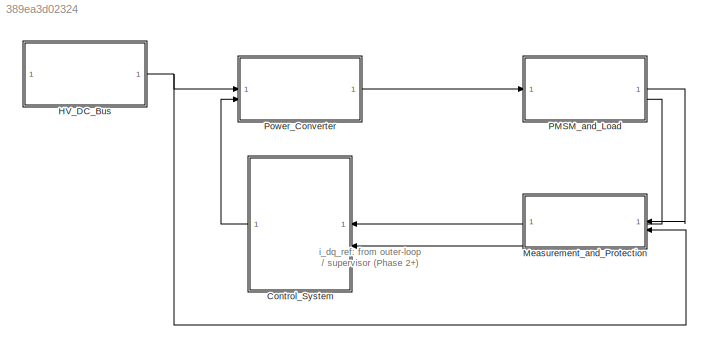
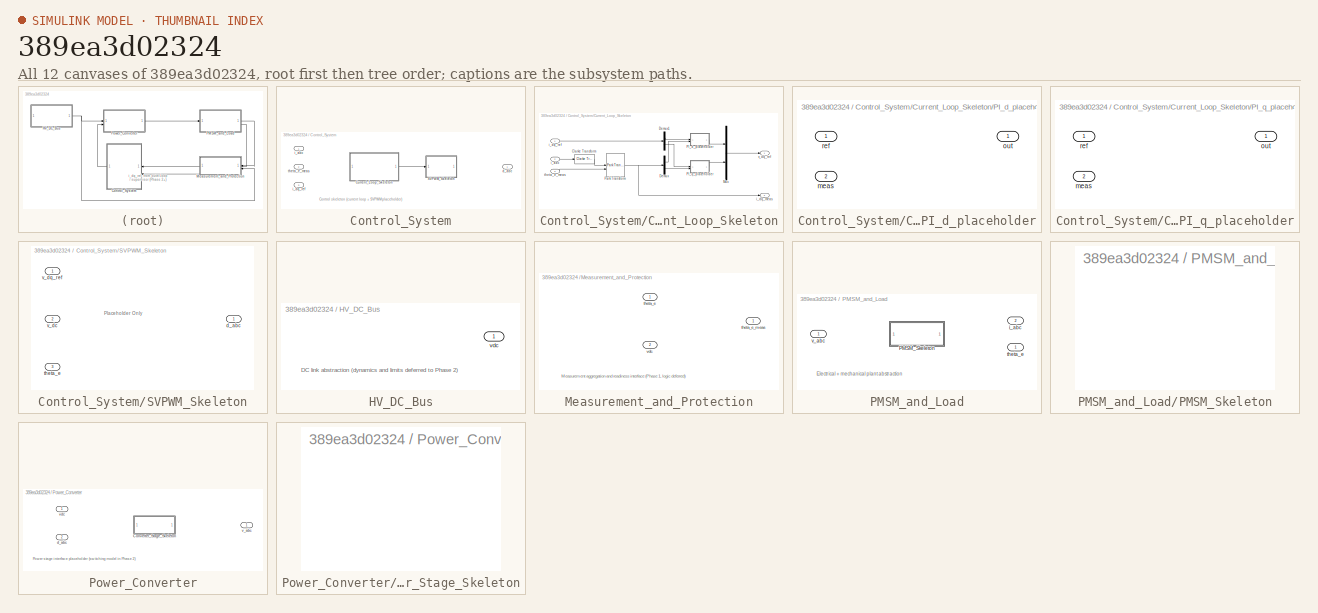
[diagram: thumbnail index - all 12 canvases of the model, root first then tree order]
MODEL slx_389ea3d02324
KIND model
CONFIG AbsTol = auto
CONFIG EnableMultiTasking = off
CONFIG FixedStep = auto
CONFIG MaxStep = auto
CONFIG MinStep = auto
CONFIG RelTol = 1e-3
CONFIG SampleTimeConstraint = Unconstrained
CONFIG SolverName = VariableStepAuto
CONFIG StartTime = 0.0
CONFIG StopTime = 10.0
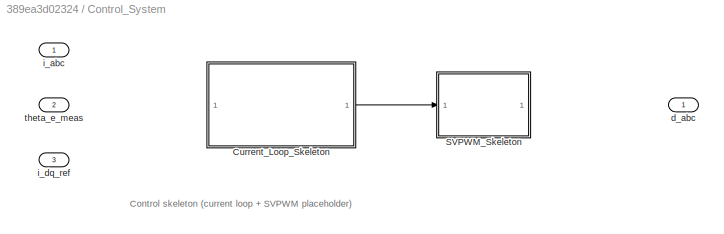
BLOCK [SubSystem] Control_System
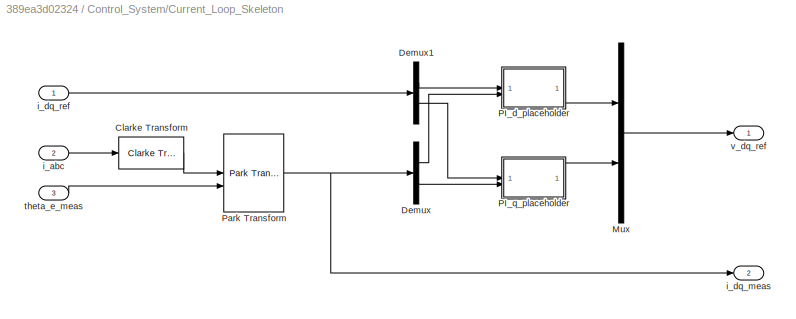
BLOCK [SubSystem] Control_System/Current_Loop_Skeleton
BLOCK [Reference] Control_System/Current_Loop_Skeleton/Clarke Transform  REF=eeTransforms/Clarke Transform
  LibrarySourceBlock = ee_sl_lib/Mathematical\nTransforms/Clarke Transform
  SourceBlock = eeTransforms/Clarke Transform
  SourceType = Clarke Transform
BLOCK [Demux] Control_System/Current_Loop_Skeleton/Demux
  Outputs = 2
BLOCK [Demux] Control_System/Current_Loop_Skeleton/Demux1
  Outputs = 2
BLOCK [Mux] Control_System/Current_Loop_Skeleton/Mux
  DisplayOption = bar
  Inputs = 2
BLOCK [SubSystem] Control_System/Current_Loop_Skeleton/PI_d_placeholder
BLOCK [Inport] Control_System/Current_Loop_Skeleton/PI_d_placeholder/meas
  Port = 2
BLOCK [Outport] Control_System/Current_Loop_Skeleton/PI_d_placeholder/out
BLOCK [Inport] Control_System/Current_Loop_Skeleton/PI_d_placeholder/ref
BLOCK [SubSystem] Control_System/Current_Loop_Skeleton/PI_q_placeholder
BLOCK [Inport] Control_System/Current_Loop_Skeleton/PI_q_placeholder/meas
  Port = 2
BLOCK [Outport] Control_System/Current_Loop_Skeleton/PI_q_placeholder/out
BLOCK [Inport] Control_System/Current_Loop_Skeleton/PI_q_placeholder/ref
BLOCK [Reference] Control_System/Current_Loop_Skeleton/Park Transform  REF=eeTransforms/Park Transform
  LibrarySourceBlock = ee_sl_lib/Mathematical\nTransforms/Park Transform
  SourceBlock = eeTransforms/Park Transform
  SourceType = Park Transform
BLOCK [Inport] Control_System/Current_Loop_Skeleton/i_abc
  Port = 2
BLOCK [Outport] Control_System/Current_Loop_Skeleton/i_dq_meas
  Port = 2
BLOCK [Inport] Control_System/Current_Loop_Skeleton/i_dq_ref
BLOCK [Inport] Control_System/Current_Loop_Skeleton/theta_e_meas
  Port = 3
BLOCK [Outport] Control_System/Current_Loop_Skeleton/v_dq_ref
BLOCK [SubSystem] Control_System/SVPWM_Skeleton
BLOCK [Outport] Control_System/SVPWM_Skeleton/d_abc
BLOCK [Inport] Control_System/SVPWM_Skeleton/theta_e
  Port = 3
BLOCK [Inport] Control_System/SVPWM_Skeleton/v_dc
  Port = 2
BLOCK [Inport] Control_System/SVPWM_Skeleton/v_dq_ref
BLOCK [Outport] Control_System/d_abc
BLOCK [Inport] Control_System/i_abc
BLOCK [Inport] Control_System/i_dq_ref
  Port = 3
BLOCK [Inport] Control_System/theta_e_meas
  Port = 2
BLOCK [SubSystem] HV_DC_Bus
BLOCK [Outport] HV_DC_Bus/vdc
BLOCK [SubSystem] Measurement_and_Protection
BLOCK [Inport] Measurement_and_Protection/theta_e
BLOCK [Outport] Measurement_and_Protection/theta_e_meas
BLOCK [Inport] Measurement_and_Protection/vdc
  Port = 2
BLOCK [SubSystem] PMSM_and_Load
BLOCK [SubSystem] PMSM_and_Load/PMSM_Skeleton
BLOCK [Outport] PMSM_and_Load/i_abc
  Port = 2
BLOCK [Outport] PMSM_and_Load/theta_e
BLOCK [Inport] PMSM_and_Load/v_abc
BLOCK [SubSystem] Power_Converter
BLOCK [SubSystem] Power_Converter/Converter_Stage_Skeleton
BLOCK [Inport] Power_Converter/d_abc
  Port = 2
BLOCK [Outport] Power_Converter/v_abc
BLOCK [Inport] Power_Converter/vdc
ANNOTATION (root): i_dq_ref: from outer-loop / supervisor (Phase 2+)
ANNOTATION Control_System: Control skeleton (current loop + SVPWM placeholder)
ANNOTATION Control_System/SVPWM_Skeleton: Placeholder Only
ANNOTATION HV_DC_Bus: DC link abstraction (dynamics and limits deferred to Phase 2)
ANNOTATION Measurement_and_Protection: Measurement aggregation and readiness interface (Phase 1, logic deferred)
ANNOTATION PMSM_and_Load: Electrical + mechanical plant abstraction
ANNOTATION Power_Converter: Power stage interface placeholder (switching model in Phase 2)
LINE Control_System/Current_Loop_Skeleton/Clarke Transform:1 -> Control_System/Current_Loop_Skeleton/Park Transform:1
LINE Control_System/Current_Loop_Skeleton/Demux1:1 -> Control_System/Current_Loop_Skeleton/PI_d_placeholder:1
LINE Control_System/Current_Loop_Skeleton/Demux1:2 -> Control_System/Current_Loop_Skeleton/PI_q_placeholder:1
LINE Control_System/Current_Loop_Skeleton/Demux:1 -> Control_System/Current_Loop_Skeleton/PI_d_placeholder:2
LINE Control_System/Current_Loop_Skeleton/Demux:2 -> Control_System/Current_Loop_Skeleton/PI_q_placeholder:2
LINE Control_System/Current_Loop_Skeleton/Mux:1 -> Control_System/Current_Loop_Skeleton/v_dq_ref:1
LINE Control_System/Current_Loop_Skeleton/PI_d_placeholder:1 -> Control_System/Current_Loop_Skeleton/Mux:1
LINE Control_System/Current_Loop_Skeleton/PI_q_placeholder:1 -> Control_System/Current_Loop_Skeleton/Mux:2
NET Control_System/Current_Loop_Skeleton/Park Transform:1 -> Control_System/Current_Loop_Skeleton/Demux:1, Control_System/Current_Loop_Skeleton/i_dq_meas:1
LINE Control_System/Current_Loop_Skeleton/i_abc:1 -> Control_System/Current_Loop_Skeleton/Clarke Transform:1
LINE Control_System/Current_Loop_Skeleton/i_dq_ref:1 -> Control_System/Current_Loop_Skeleton/Demux1:1
LINE Control_System/Current_Loop_Skeleton/theta_e_meas:1 -> Control_System/Current_Loop_Skeleton/Park Transform:2
LINE Control_System/Current_Loop_Skeleton:1 -> Control_System/SVPWM_Skeleton:1
LINE Control_System:1 -> Power_Converter:2
NET HV_DC_Bus:1 -> Measurement_and_Protection:2, Power_Converter:1
LINE Measurement_and_Protection:1 -> Control_System:2
LINE PMSM_and_Load:1 -> Measurement_and_Protection:1
LINE PMSM_and_Load:2 -> Control_System:1
LINE Power_Converter:1 -> PMSM_and_Load:1
note: NET lines group one-source signal fan-out (src -> all destinations, sorted); 1:1 wires keep LINE
